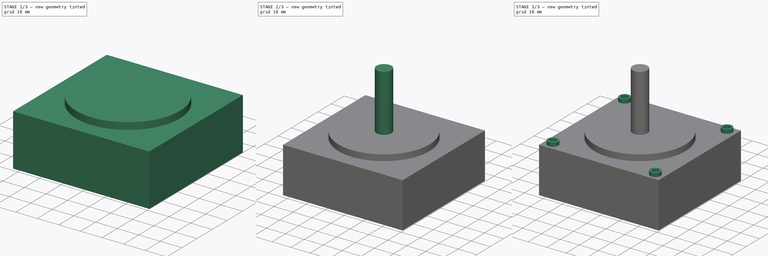
[diagram: build sequence overview — one tinted view per stage of 3, left to right]
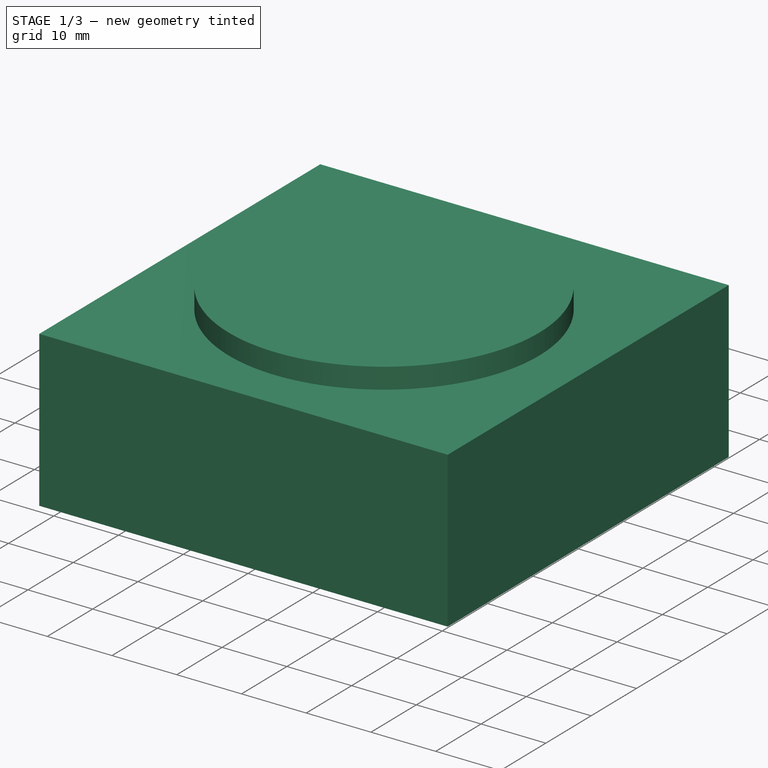
[diagram: stage 1 of 3 — iso view after this stage's code; geometry added in this stage tinted green]
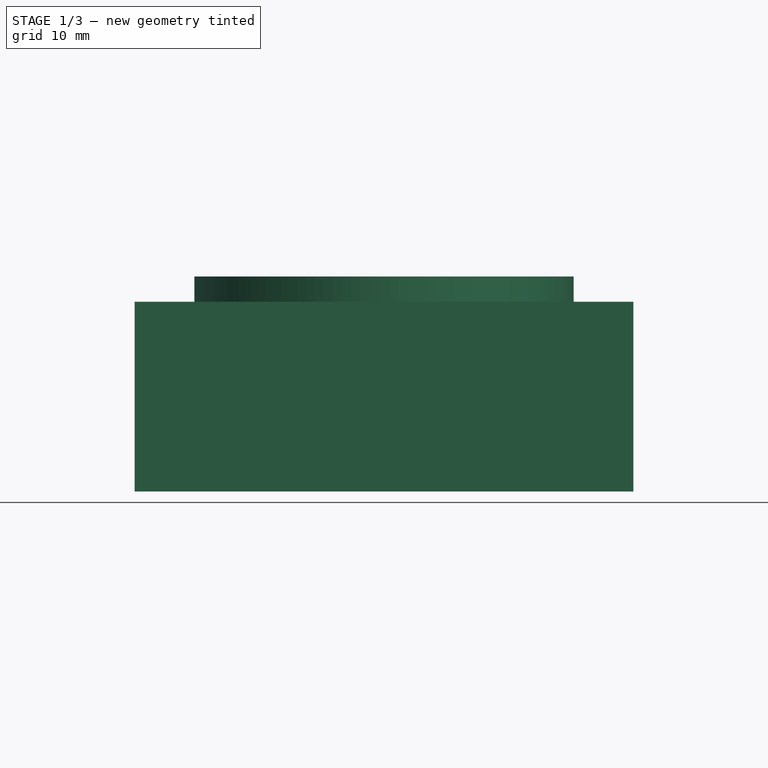
[diagram: stage 1 of 3 — front view after this stage's code; geometry added in this stage tinted green]
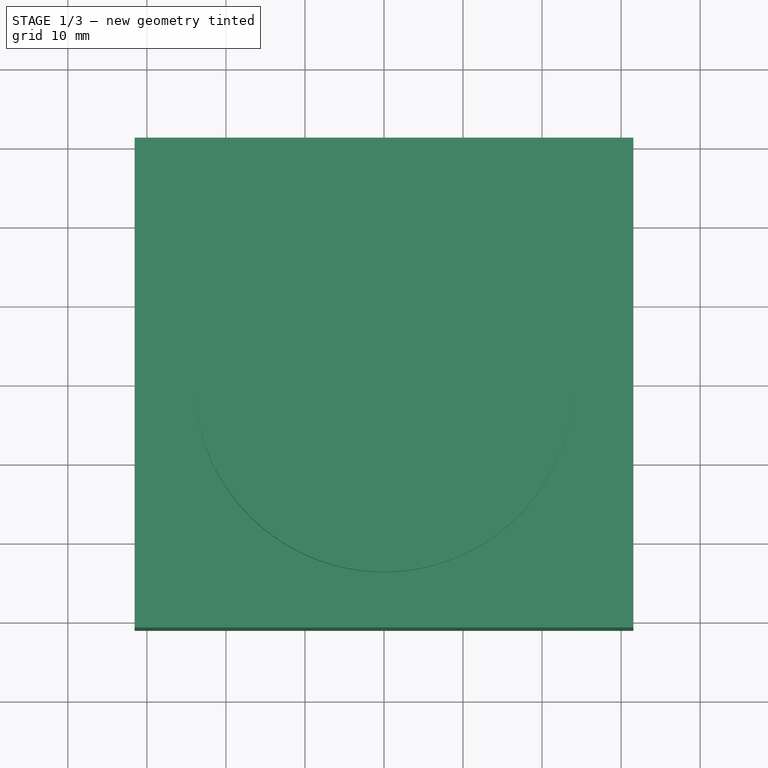
[diagram: stage 1 of 3 — top view after this stage's code; geometry added in this stage tinted green]
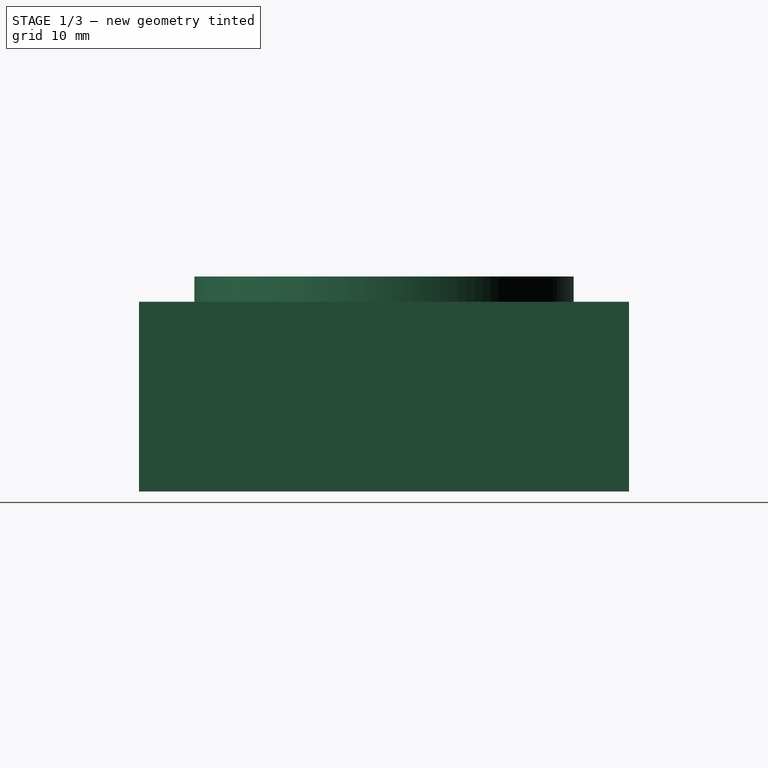
[diagram: stage 1 of 3 — right view after this stage's code; geometry added in this stage tinted green]
FCSTD DOCUMENT  (FreeCAD 0.19R24291 (Git))
Label: GIMBAL
License: All rights reserved
LicenseURL: http://en.wikipedia.org/wiki/All_rights_reserved
objects: Sketcher::SketchObject×5, PartDesign::Pad×4, Spreadsheet::Sheet×1, PartDesign::Hole×1, PartDesign::Body×1
note: 16 computed .brp shape members not serialized (recipe doc carries the construction recipe); baked Part::Feature solids carry a one-line shape summary decoded from their .brp

FEATURE [Sketcher::SketchObject] Sketch
  FullyConstrained = true
  MapMode = 5
  Support = -> [XY_Plane]
  expr: Constraints[8] = <<gimbal>>.width
  expr: Constraints[9] = <<gimbal>>.length
  expr: Constraints[10] = <<gimbal>>.length / 2
  expr: Constraints[11] = <<gimbal>>.width / 2
  sketch-geometry (4):
    g0: LineSegment StartX=-31.55 StartY=31 StartZ=0 EndX=31.55 EndY=31 EndZ=0
    g1: LineSegment StartX=31.55 StartY=31 StartZ=0 EndX=31.55 EndY=-31 EndZ=0
    g2: LineSegment StartX=31.55 StartY=-31 StartZ=0 EndX=-31.55 EndY=-31 EndZ=0
    g3: LineSegment StartX=-31.55 StartY=-31 StartZ=0 EndX=-31.55 EndY=31 EndZ=0
  constraints (12):
    c: Coincident(g0,g1)
    c: Coincident(g1,g2)
    c: Coincident(g2,g3)
    c: Coincident(g3,g0)
    c: Horizontal(g0)
    c: Horizontal(g2)
    c: Vertical(g1)
    c: Vertical(g3)
    c: DistanceY(g1,g1) = 62
    c: DistanceX(g0,g0) = 63.1
    c: Distance(g0,g-2) = 31.55
    c: Distance(g1,g-1) = 31
FEATURE [Spreadsheet::Sheet] Spreadsheet  label="gimbal"
  cells = A1=length; B1(length)=63.1; A2=width; B2(width)=62; A3=depth; B3(depth)=24; A4=InnerCircleDia; B4(InnerCircleDia)=48; A5=InnerCircleDepth; B5(InnerCircleDepth)=3.2; A6=holesDistance; B6(holesDistance)=54; A7=holesDia; B7(holesDia)=3; A8=stickDia; B8(stickDia)=8; A9=stickLength; B9(stickLength)=30; A10=holesOuterDia; B10(holesOuterDia)=5.5; A11=holesDepth; B11(holesDepth)=2
FEATURE [PartDesign::Pad] Pad
  Direction = (1,1,1)
  Length = 24
  Length2 = 100
  Profile = -> Sketch
  Reversed = true
  Type = 0
  expr: Length = <<gimbal>>.depth
FEATURE [Sketcher::SketchObject] Sketch001
  FullyConstrained = true
  MapMode = 5
  Support = -> [Pad]
  expr: Constraints[1] = <<gimbal>>.InnerCircleDia / 2
  sketch-geometry (1):
    g0: Circle CenterX=0 CenterY=0 CenterZ=0 NormalX=0 NormalY=0 NormalZ=1 AngleXU=0 Radius=24
  constraints (2):
    c: Coincident(g0,g-1)
    c: Radius(g0) = 24
FEATURE [PartDesign::Pad] Pad001
  BaseFeature = -> Pad
  Direction = (1,1,1)
  Length = 3.2
  Length2 = 100
  Profile = -> Sketch001
  Type = 0
  expr: Length = <<gimbal>>.InnerCircleDepth
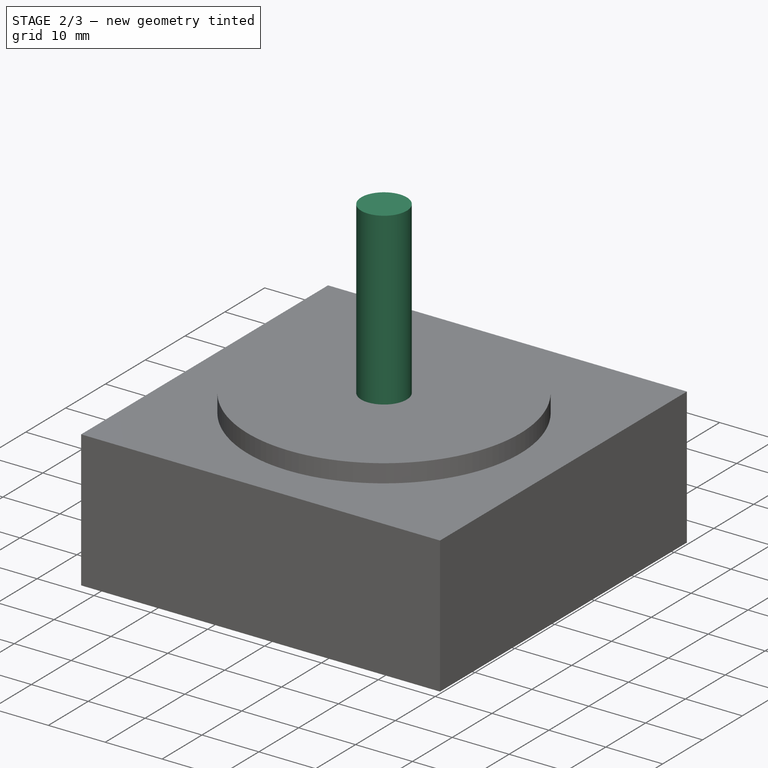
[diagram: stage 2 of 3 — iso view after this stage's code; geometry added in this stage tinted green]
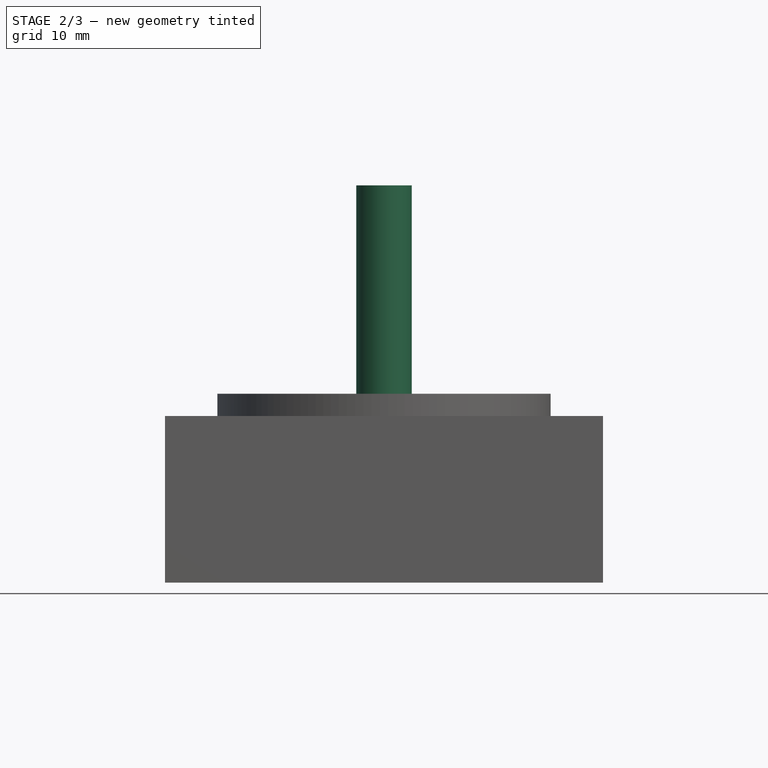
[diagram: stage 2 of 3 — front view after this stage's code; geometry added in this stage tinted green]
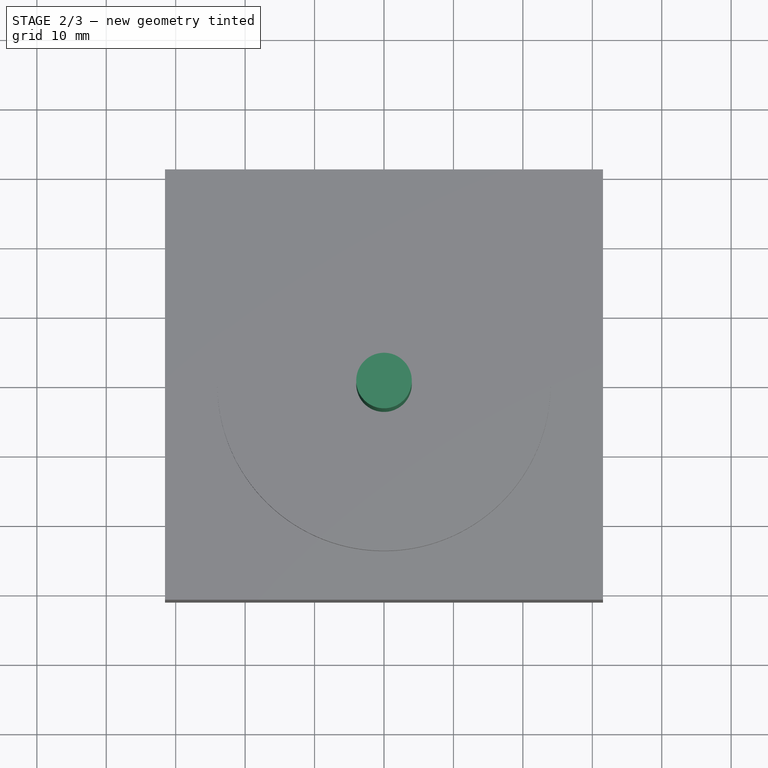
[diagram: stage 2 of 3 — top view after this stage's code; geometry added in this stage tinted green]
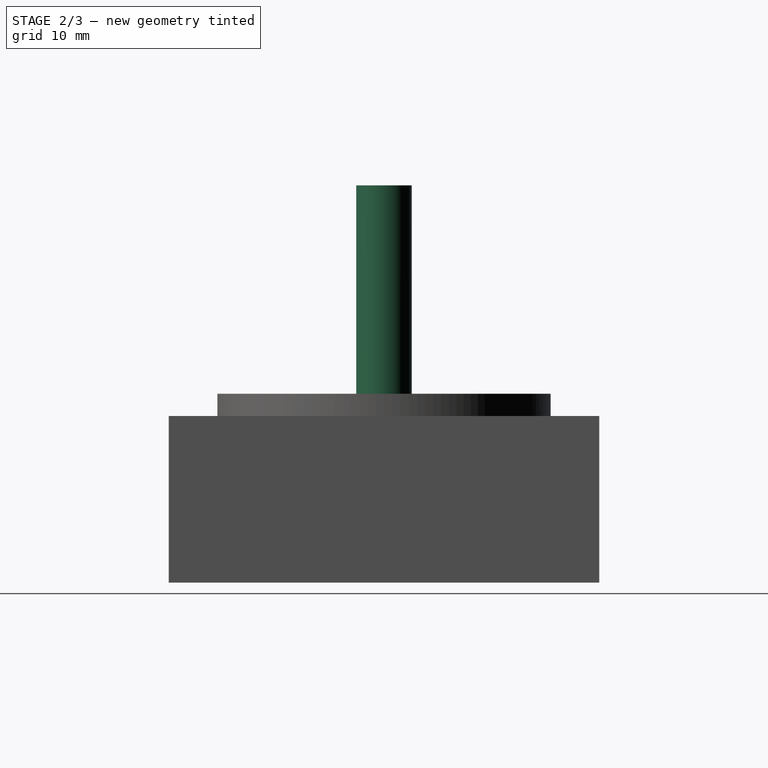
[diagram: stage 2 of 3 — right view after this stage's code; geometry added in this stage tinted green]
FEATURE [Sketcher::SketchObject] Sketch002
  FullyConstrained = true
  MapMode = 5
  Placement = pos=(0,0,3.2) rot=(0,0,1;0rad)
  Support = -> [Pad001]
  expr: Constraints[1] = <<gimbal>>.stickDia / 2
  sketch-geometry (1):
    g0: Circle CenterX=0 CenterY=0 CenterZ=0 NormalX=0 NormalY=0 NormalZ=1 AngleXU=0 Radius=4
  constraints (2):
    c: Coincident(g0,g-1)
    c: Radius(g0) = 4
FEATURE [PartDesign::Pad] Pad002
  BaseFeature = -> Pad001
  Direction = (1,1,1)
  Length = 30
  Length2 = 100
  Profile = -> Sketch002
  Type = 0
  expr: Length = <<gimbal>>.stickLength
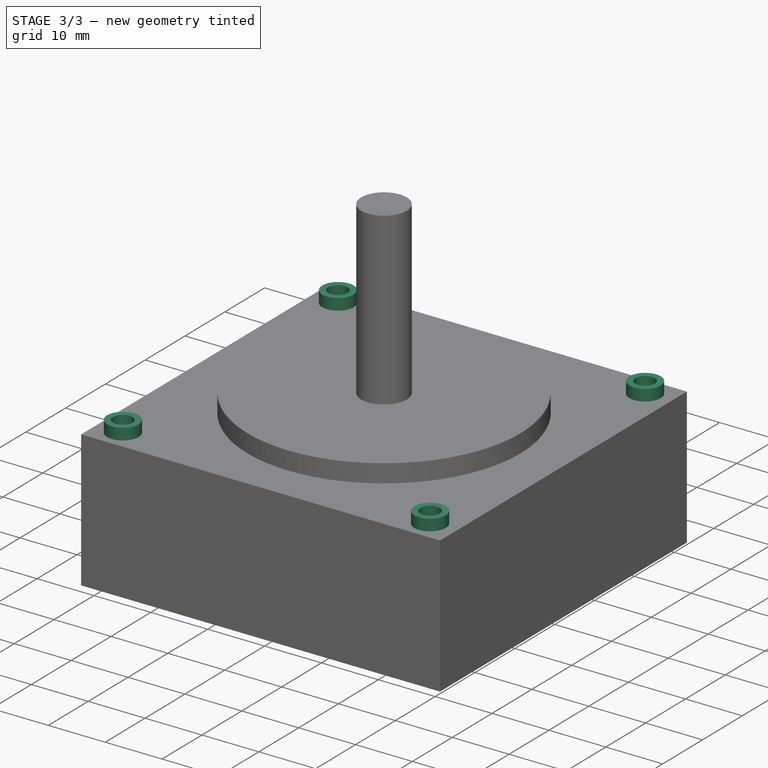
[diagram: stage 3 of 3 — iso view after this stage's code; geometry added in this stage tinted green]
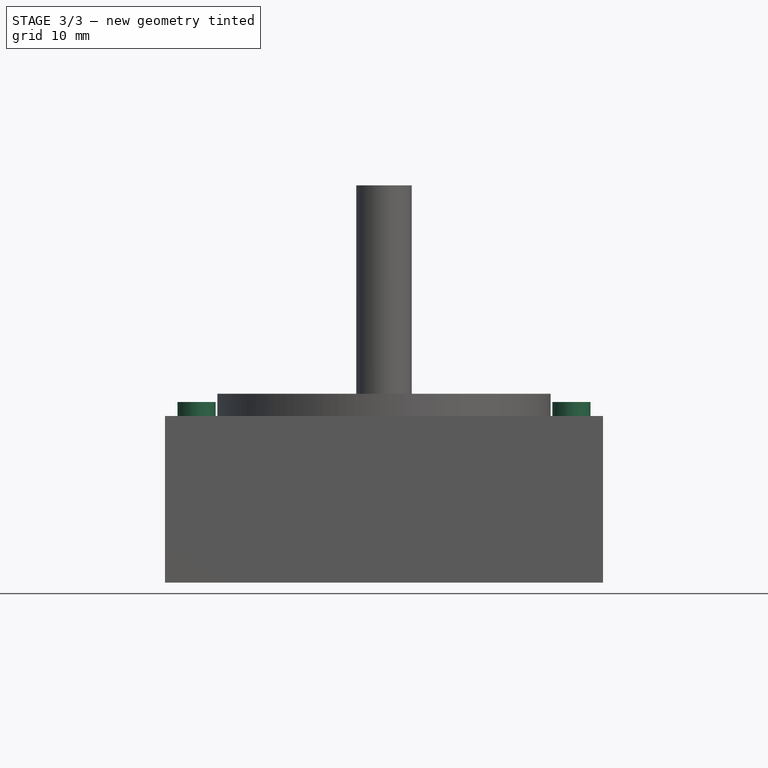
[diagram: stage 3 of 3 — front view after this stage's code; geometry added in this stage tinted green]
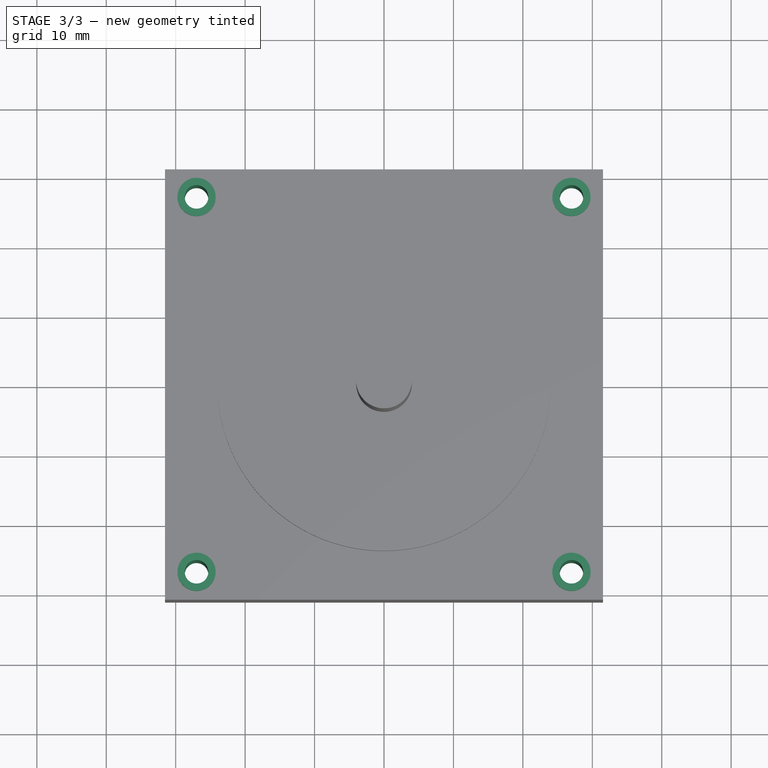
[diagram: stage 3 of 3 — top view after this stage's code; geometry added in this stage tinted green]
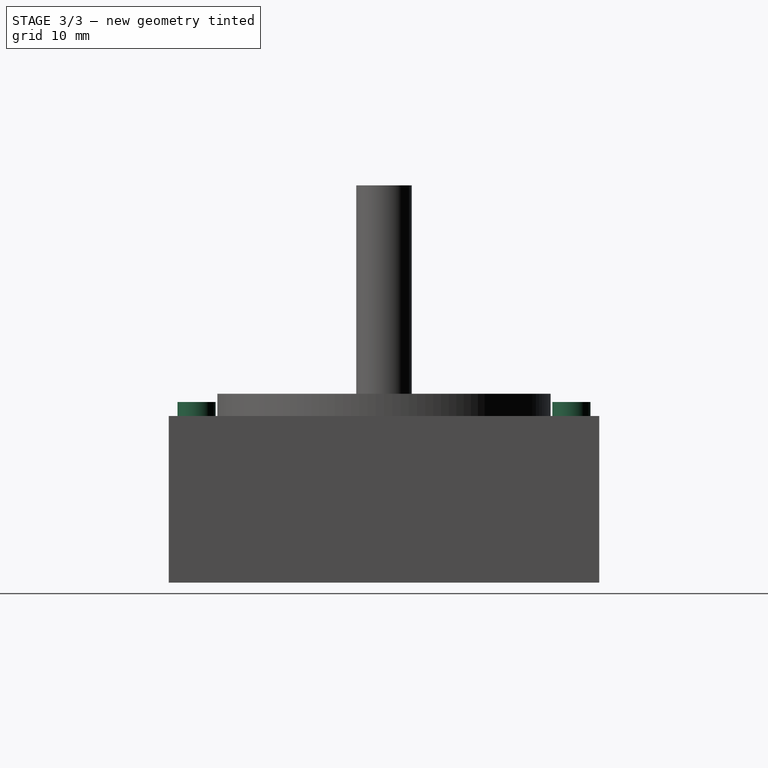
[diagram: stage 3 of 3 — right view after this stage's code; geometry added in this stage tinted green]
FEATURE [Sketcher::SketchObject] Sketch003
  FullyConstrained = true
  MapMode = 5
  Support = -> [Pad002]
  expr: Constraints[3] = <<gimbal>>.holesOuterDia / 2
  expr: Constraints[4] = <<gimbal>>.holesOuterDia / 2
  expr: Constraints[5] = <<gimbal>>.holesOuterDia / 2
  expr: Constraints[6] = <<gimbal>>.holesOuterDia / 2
  expr: Constraints[7] = <<gimbal>>.holesDistance
  expr: Constraints[8] = <<gimbal>>.holesDistance
  sketch-geometry (4):
    g0: Circle CenterX=-27 CenterY=27 CenterZ=0 NormalX=0 NormalY=0 NormalZ=1 AngleXU=0 Radius=2.75
    g1: Circle CenterX=27 CenterY=27 CenterZ=0 NormalX=0 NormalY=0 NormalZ=1 AngleXU=0 Radius=2.75
    g2: Circle CenterX=-27 CenterY=-27 CenterZ=0 NormalX=0 NormalY=0 NormalZ=1 AngleXU=0 Radius=2.75
    g3: Circle CenterX=27 CenterY=-27 CenterZ=0 NormalX=0 NormalY=0 NormalZ=1 AngleXU=0 Radius=2.75
  constraints (9):
    c: Symmetric(g0,g1,g-2)
    c: Symmetric(g0,g2,g-1)
    c: Symmetric(g2,g3,g-2)
    c: Radius(g1) = 2.75
    c: Radius(g0) = 2.75
    c: Radius(g2) = 2.75
    c: Radius(g3) = 2.75
    c: Distance(g0,g1) = 54
    c: Distance(g2,g0) = 54
FEATURE [PartDesign::Pad] Pad003
  BaseFeature = -> Pad002
  Direction = (1,1,1)
  Length = 2
  Length2 = 100
  Profile = -> Sketch003
  Type = 0
  expr: Length = <<gimbal>>.holesDepth
FEATURE [Sketcher::SketchObject] Sketch004
  FullyConstrained = true
  MapMode = 5
  Placement = pos=(0,0,2) rot=(0,0,1;0rad)
  Support = -> [Pad003]
  expr: Constraints[3] = <<gimbal>>.holesDia / 2
  expr: Constraints[4] = <<gimbal>>.holesDia / 2
  expr: Constraints[5] = <<gimbal>>.holesDia / 2
  expr: Constraints[6] = <<gimbal>>.holesDia / 2
  expr: Constraints[7] = <<gimbal>>.holesDistance
  expr: Constraints[8] = <<gimbal>>.holesDistance
  sketch-geometry (4):
    g0: Circle CenterX=-27 CenterY=27 CenterZ=0 NormalX=0 NormalY=0 NormalZ=1 AngleXU=0 Radius=1.5
    g1: Circle CenterX=27 CenterY=27 CenterZ=0 NormalX=0 NormalY=0 NormalZ=1 AngleXU=0 Radius=1.5
    g2: Circle CenterX=27 CenterY=-27 CenterZ=0 NormalX=0 NormalY=0 NormalZ=1 AngleXU=0 Radius=1.5
    g3: Circle CenterX=-27 CenterY=-27 CenterZ=0 NormalX=0 NormalY=0 NormalZ=1 AngleXU=0 Radius=1.5
  constraints (9):
    c: Symmetric(g1,g0,g-2)
    c: Symmetric(g0,g3,g-1)
    c: Symmetric(g2,g3,g-2)
    c: Radius(g1) = 1.5
    c: Radius(g0) = 1.5
    c: Radius(g3) = 1.5
    c: Radius(g2) = 1.5
    c: Distance(g0,g1) = 54
    c: Distance(g0,g3) = 54
FEATURE [PartDesign::Hole] Hole
  BaseFeature = -> Pad003
  Depth = 25
  DepthType = 1
  Diameter = 3.4
  DrillForDepth = false
  DrillPoint = 1
  DrillPointAngle = 118
  HoleCutCountersinkAngle = 90
  HoleCutCustomValues = false
  HoleCutDepth = 0
  HoleCutDiameter = 6.1
  HoleCutType = 0
  ModelActualThread = false
  Profile = -> Sketch004
  Tapered = false
  TaperedAngle = 90
  ThreadAngle = 0
  ThreadClass = 0
  ThreadCutOffInner = 0
  ThreadCutOffOuter = 0
  ThreadDirection = 0
  ThreadFit = 0
  ThreadPitch = 0
  ThreadSize = 9
  ThreadType = 1
  Threaded = false
FEATURE [PartDesign::Body] Body
  Group = -> [Sketch,Pad,Sketch001,Pad001,Sketch002,Pad002,Sketch003,Pad003,Sketch004,Hole]
  Origin = -> Origin
  Tip = -> Hole
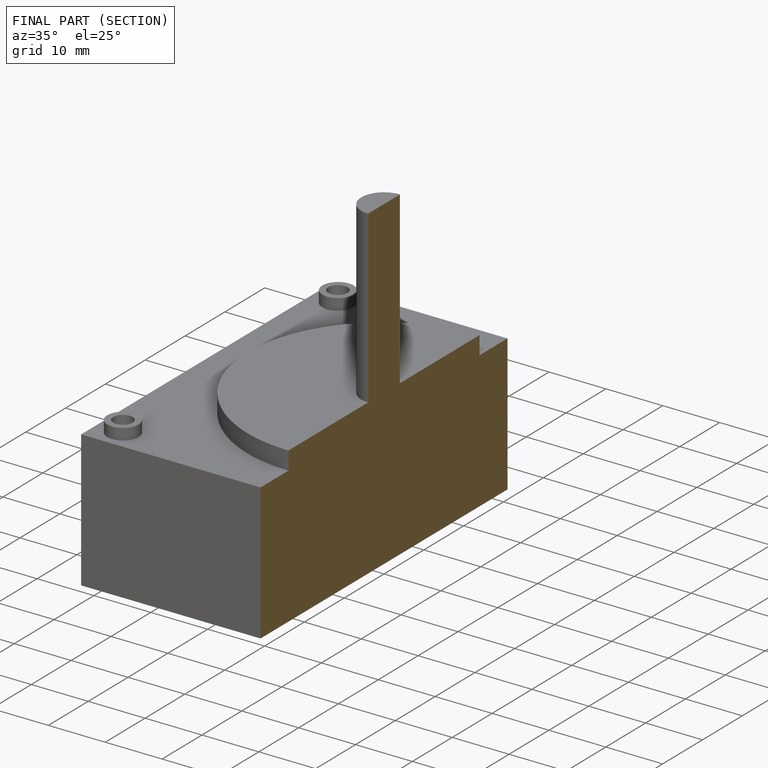
[diagram: finished part — half-section view (interior)]
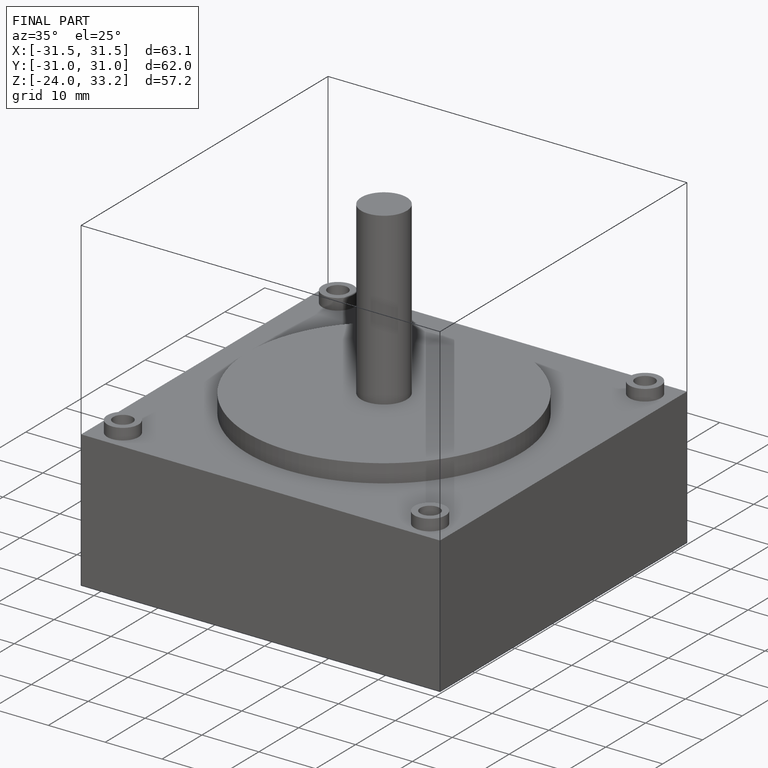
[diagram: finished part — iso view with bounding-box wireframe]
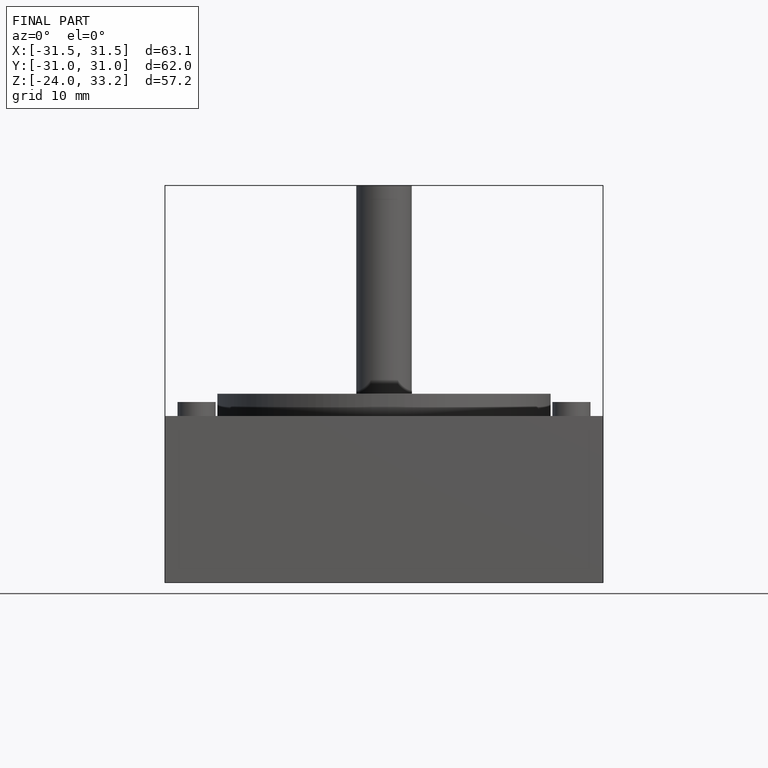
[diagram: finished part — front view with bounding-box wireframe]
